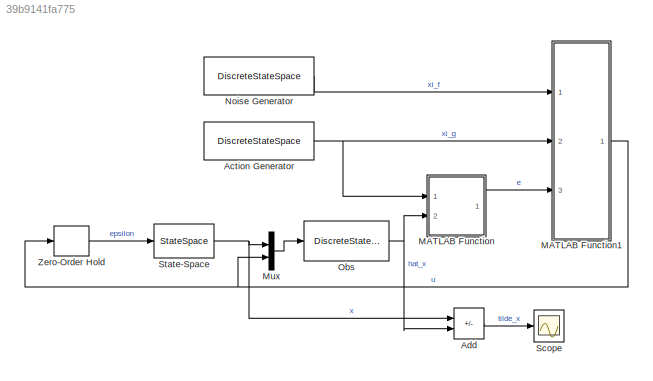
MODEL slx_39b9141fa775
KIND model
CONFIG AbsTol = auto
CONFIG EnableMultiTasking = off
CONFIG FixedStep = auto
CONFIG MaxStep = auto
CONFIG MinStep = auto
CONFIG RelTol = 1e-3
CONFIG SampleTimeConstraint = Unconstrained
CONFIG SolverName = VariableStepAuto
CONFIG StartTime = 0.0
CONFIG StopTime = 15
BLOCK [DiscreteStateSpace] Action Generator
  A = Gamma_g
  B = [0;0]
  C = eye(2)
  D = [0;0]
  InitialCondition = xi_g0
  SampleTime = T
BLOCK [Sum] Add
  IconShape = rectangular
  Inputs = +-
  Ports = [2, 1]
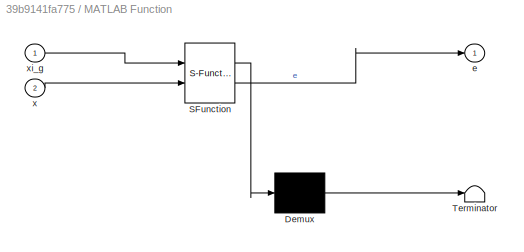
BLOCK [SubSystem] MATLAB Function
  ErrorFcn = Stateflow.Translate.translate
  PermitHierarchicalResolution = ExplicitOnly
  Ports = [2, 1]
  RequestExecContextInheritance = off
  SFBlockType = MATLAB Function
  TreatAsAtomicUnit = on
BLOCK [Demux] MATLAB Function/ Demux 
  Outputs = 1
  Ports = [1, 1]
BLOCK [S-Function] MATLAB Function/ SFunction 
  EnableBusSupport = on
  FunctionName = sf_sfun
  Parameters = M_g
  PortCounts = [2 2]
  Ports = [2, 2]
  SFcnIsStateOwnerBlock = off
  SFunctionDeploymentMode = off
  Tag = Stateflow S-Function 2
BLOCK [Terminator] MATLAB Function/ Terminator 
BLOCK [Outport] MATLAB Function/e
BLOCK [Inport] MATLAB Function/x
  Port = 2
BLOCK [Inport] MATLAB Function/xi_g
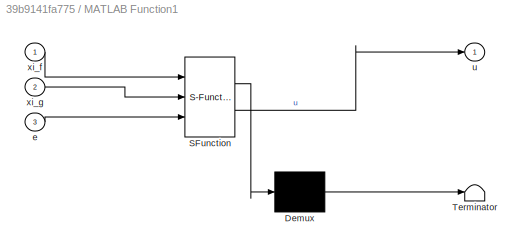
BLOCK [SubSystem] MATLAB Function1
  ErrorFcn = Stateflow.Translate.translate
  PermitHierarchicalResolution = ExplicitOnly
  Ports = [3, 1]
  RequestExecContextInheritance = off
  SFBlockType = MATLAB Function
  TreatAsAtomicUnit = on
BLOCK [Demux] MATLAB Function1/ Demux 
  Outputs = 1
  Ports = [1, 1]
BLOCK [S-Function] MATLAB Function1/ SFunction 
  EnableBusSupport = on
  FunctionName = sf_sfun
  Parameters = K_oc,L_f,L_g
  PortCounts = [3 2]
  Ports = [3, 2]
  SFcnIsStateOwnerBlock = off
  SFunctionDeploymentMode = off
  Tag = Stateflow S-Function 1
BLOCK [Terminator] MATLAB Function1/ Terminator 
BLOCK [Inport] MATLAB Function1/e
  Port = 3
BLOCK [Outport] MATLAB Function1/u
BLOCK [Inport] MATLAB Function1/xi_f
BLOCK [Inport] MATLAB Function1/xi_g
  Port = 2
BLOCK [Mux] Mux
  DisplayOption = bar
  Inputs = 2
  Ports = [2, 1]
BLOCK [DiscreteStateSpace] Noise Generator
  A = Gamma_f
  B = 0
  C = H_f
  D = 0
  InitialCondition = xi_f0
  SampleTime = T
BLOCK [DiscreteStateSpace] Obs
  A = A_d - L*C
  B = [L*C B_d]
  C = eye(2)
  D = zeros(2, 3)
  NameLocation = top
  SampleTime = T
BLOCK [Scope] Scope
  Floating = off
  NumInputPorts = 1
  Ports = [1]
  ScopeSpecificationString = Simulink.scopes.TimeScopeBlockCfg('CurrentConfiguration', extmgr.ConfigurationSet(extmgr.Configuration('Core','General UI',true),extmgr.Configuration('Core','Source UI',true),extmgr.Configuration('Sources','WiredSimulink',true),extmgr.Configuration('Visuals','Time Domain',true,'SerializedDisplays',{struct('MinYLimReal','-0.08865','MaxYLimReal','0.79788','YLabelReal','','MinYLimMag','0.00000','MaxY...<+1341ch>
BLOCK [StateSpace] State-Space
  A = A
  B = B
  C = eye(2)
  D = [0;0]
  InitialCondition = 0
  Ports = [1, 1]
BLOCK [ZeroOrderHold] Zero-Order Hold
  NameLocation = top
  SampleTime = -1
NET Action Generator:1 -> MATLAB Function1:2, MATLAB Function:1
LINE Add:1 -> Scope:1
NET MATLAB Function1:1 -> Mux:2, Zero-Order Hold:1
LINE MATLAB Function:1 -> MATLAB Function1:3
LINE Mux:1 -> Obs:1
LINE Noise Generator:1 -> MATLAB Function1:1
NET Obs:1 -> Add:2, MATLAB Function:2
NET State-Space:1 -> Add:1, Mux:1
LINE Zero-Order Hold:1 -> State-Space:1
note: NET lines group one-source signal fan-out (src -> all destinations, sorted); 1:1 wires keep LINE
CHART MATLAB Function1 states=1 transitions=1
  STATE_LABEL 'eML_blk_kernel()'
  STATE_LABEL 'SCRIPT:\nfunction u = fcn(xi_f, xi_g, e, L_f, L_g, K_oc)\n\nu =  K_oc*e + L_g*xi_g - L_f*xi_f;\n'
CHART MATLAB Function states=1 transitions=1
  STATE_LABEL 'eML_blk_kernel()'
  STATE_LABEL 'SCRIPT:\nfunction e = fcn(xi_g, x, M_g)\n\ne = M_g*xi_g - x;\n'
CHART  states=0 transitions=0
CHART  states=0 transitions=0
